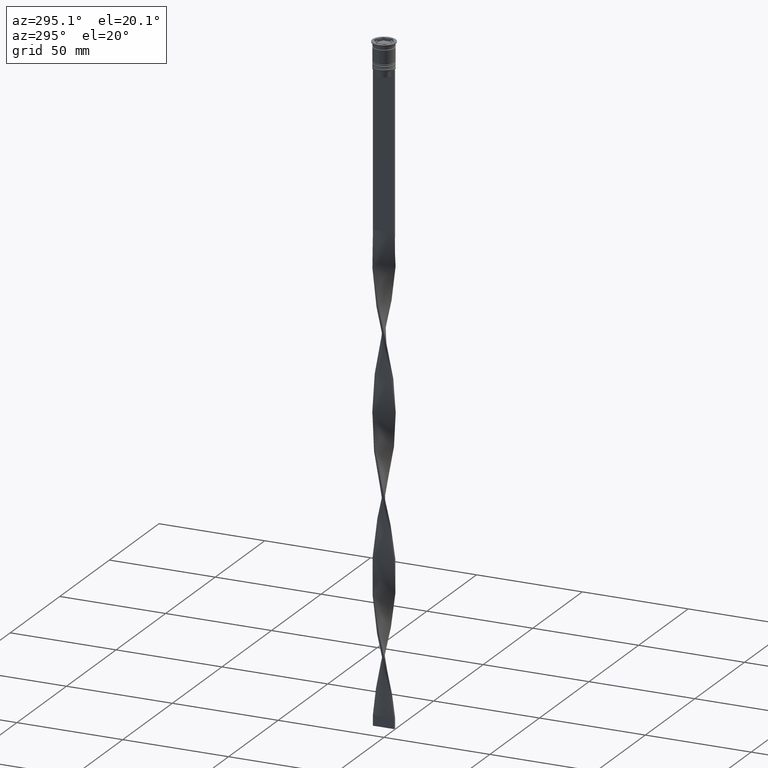
[diagram: clean part render]
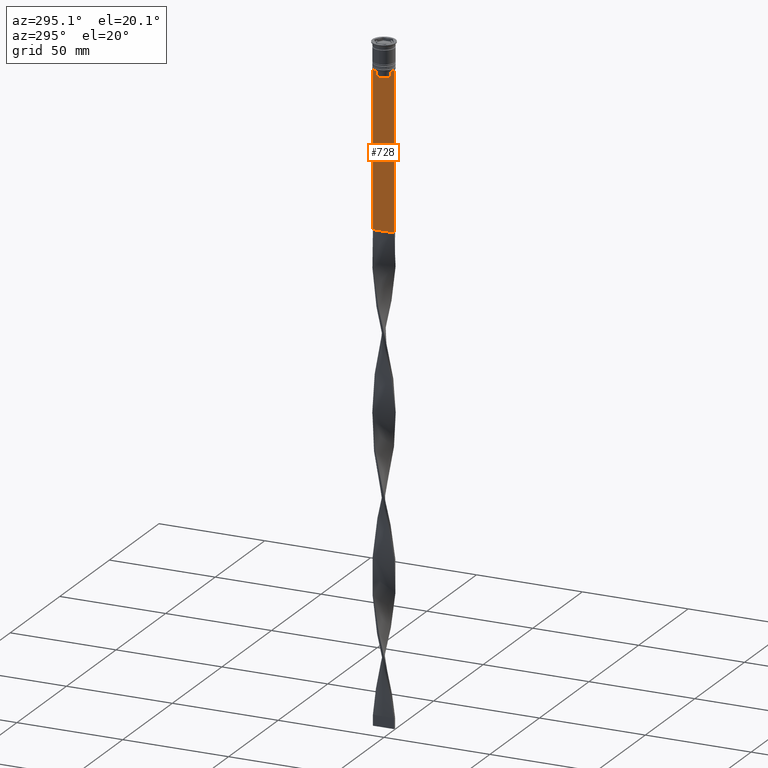
[diagram: same view with one face highlighted and labeled with its STEP entity id]
A machine part, auxiliary view. The second image highlights one B-rep face of the part: STEP entity #728.
In plain terms, the highlighted planar face has unit normal (-1, 0, 0).
Its self-contained STEP definition (entity closure, byte-faithful):
#10 = CARTESIAN_POINT ( 'NONE',  ( -0.5000000000000000000, -3.363034344160045208, 0.000000000000000000 ) ) ;
#63 = LINE ( 'NONE', #2919, #3769 ) ;
#65 = FACE_OUTER_BOUND ( 'NONE', #2010, .T. ) ;
#272 = CARTESIAN_POINT ( 'NONE',  ( -0.5000000000000000000, -4.999999999999999112, -86.50000000000000000 ) ) ;
#305 = B_SPLINE_CURVE_WITH_KNOTS ( 'NONE', 3,
 ( #3834, #693, #402, #2924 ),
 .UNSPECIFIED., .F., .F.,
 ( 4, 4 ),
 ( 0.006644825462451552783, 0.007355321358912435097 ),
 .UNSPECIFIED. ) ;
#311 = VERTEX_POINT ( 'NONE', #3650 ) ;
#319 = LINE ( 'NONE', #272, #4099 ) ;
#364 = CARTESIAN_POINT ( 'NONE',  ( -0.5000000000000000000, -4.999999999999999112, -12.50000000000000000 ) ) ;
#380 = PLANE ( 'NONE',  #1089 ) ;
#389 = LINE ( 'NONE', #3529, #2642 ) ;
#396 = EDGE_CURVE ( 'NONE', #4062, #1197, #2688, .T. ) ;
#402 = CARTESIAN_POINT ( 'NONE',  ( -0.5000000000000000000, 3.531412678228260216, -12.83345231756357840 ) ) ;
#419 = EDGE_CURVE ( 'NONE', #311, #697, #2342, .T. ) ;
#428 = ORIENTED_EDGE ( 'NONE', *, *, #419, .F. ) ;
#429 = CARTESIAN_POINT ( 'NONE',  ( -0.5000000000000000000, 3.363034344160045208, -13.00000000000000178 ) ) ;
#487 = VECTOR ( 'NONE', #2979, 1000.000000000000000 ) ;
#556 = VECTOR ( 'NONE', #2997, 1000.000000000000000 ) ;
#573 = ORIENTED_EDGE ( 'NONE', *, *, #2214, .F. ) ;
#590 = EDGE_CURVE ( 'NONE', #697, #2698, #2881, .T. ) ;
#616 = CARTESIAN_POINT ( 'NONE',  ( -0.5000000000000000000, 5.000000000000000888, -2.450124378879110054 ) ) ;
#638 = VERTEX_POINT ( 'NONE', #2901 ) ;
#693 = CARTESIAN_POINT ( 'NONE',  ( -0.5000000000000000000, 3.699657965831574913, -12.66677026074361301 ) ) ;
#697 = VERTEX_POINT ( 'NONE', #2245 ) ;
#711 = CARTESIAN_POINT ( 'NONE',  ( -0.5000000000000000000, -4.999999999999999112, -12.50000000000000000 ) ) ;
#728 = ADVANCED_FACE ( 'NONE', ( #65 ), #380, .T. ) ;
#872 = ORIENTED_EDGE ( 'NONE', *, *, #3188, .F. ) ;
#939 = CARTESIAN_POINT ( 'NONE',  ( -0.5000000000000000000, -4.874423042781575788, -12.50000000000000000 ) ) ;
#984 = EDGE_CURVE ( 'NONE', #638, #3865, #2375, .T. ) ;
#1057 = CARTESIAN_POINT ( 'NONE',  ( -0.5000000000000000000, -3.531412985305424801, -12.83345201382502765 ) ) ;
#1089 = AXIS2_PLACEMENT_3D ( 'NONE', #1377, #2666, #3554 ) ;
#1152 = EDGE_CURVE ( 'NONE', #2698, #3752, #1662, .T. ) ;
#1181 = ORIENTED_EDGE ( 'NONE', *, *, #396, .F. ) ;
#1197 = VERTEX_POINT ( 'NONE', #364 ) ;
#1242 = VERTEX_POINT ( 'NONE', #429 ) ;
#1261 = DIRECTION ( 'NONE',  ( 0.000000000000000000, 0.000000000000000000, -1.000000000000000000 ) ) ;
#1362 = CARTESIAN_POINT ( 'NONE',  ( -0.5000000000000000000, -3.363034344160045208, -13.00000000000000178 ) ) ;
#1369 = LINE ( 'NONE', #2656, #3038 ) ;
#1377 = CARTESIAN_POINT ( 'NONE',  ( -0.5000000000000000000, -4.999999999999999112, -2.450124378879110054 ) ) ;
#1379 = CARTESIAN_POINT ( 'NONE',  ( -0.5000000000000000000, 3.399999999999998135, -15.50000000000000000 ) ) ;
#1422 = VECTOR ( 'NONE', #1261, 1000.000000000000000 ) ;
#1455 = ORIENTED_EDGE ( 'NONE', *, *, #3384, .F. ) ;
#1513 = VERTEX_POINT ( 'NONE', #2221 ) ;
#1595 = DIRECTION ( 'NONE',  ( 0.000000000000000000, 1.000000000000000000, 0.000000000000000000 ) ) ;
#1662 = B_SPLINE_CURVE_WITH_KNOTS ( 'NONE', 3,
 ( #1362, #1057, #2328, #3601 ),
 .UNSPECIFIED., .F., .F.,
 ( 4, 4 ),
 ( 0.01632394437298965648, 0.01703543518243618576 ),
 .UNSPECIFIED. ) ;
#1694 = LINE ( 'NONE', #711, #3908 ) ;
#1755 = CARTESIAN_POINT ( 'NONE',  ( -0.5000000000000000000, 5.000000000000000888, -86.50000000000000000 ) ) ;
#1772 = CARTESIAN_POINT ( 'NONE',  ( -0.5000000000000000000, -3.867815921162742754, -12.50000000000000000 ) ) ;
#1795 = ORIENTED_EDGE ( 'NONE', *, *, #4051, .F. ) ;
#1810 = EDGE_CURVE ( 'NONE', #3141, #3865, #319, .T. ) ;
#1833 = VECTOR ( 'NONE', #2921, 1000.000000000000000 ) ;
#1841 = DIRECTION ( 'NONE',  ( 0.000000000000000000, 0.000000000000000000, -1.000000000000000000 ) ) ;
#1961 = CARTESIAN_POINT ( 'NONE',  ( -0.5000000000000000000, 3.867815921162742754, -12.50000000000000000 ) ) ;
#2010 = EDGE_LOOP ( 'NONE', ( #2922, #1455, #1795, #2418, #2043, #872, #1181, #573, #3423, #2100, #428, #3645 ) ) ;
#2036 = VECTOR ( 'NONE', #1841, 1000.000000000000000 ) ;
#2043 = ORIENTED_EDGE ( 'NONE', *, *, #1810, .F. ) ;
#2100 = ORIENTED_EDGE ( 'NONE', *, *, #590, .F. ) ;
#2214 = EDGE_CURVE ( 'NONE', #3752, #4062, #1694, .T. ) ;
#2221 = CARTESIAN_POINT ( 'NONE',  ( -0.5000000000000000000, 4.874423042781575788, -12.50000000000000000 ) ) ;
#2245 = CARTESIAN_POINT ( 'NONE',  ( -0.5000000000000000000, -3.363034344160045652, -15.50000000000000000 ) ) ;
#2328 = CARTESIAN_POINT ( 'NONE',  ( -0.5000000000000000000, -3.699658232838647365, -12.66676999593996555 ) ) ;
#2342 = LINE ( 'NONE', #1379, #556 ) ;
#2375 = LINE ( 'NONE', #616, #1422 ) ;
#2418 = ORIENTED_EDGE ( 'NONE', *, *, #984, .T. ) ;
#2442 = CARTESIAN_POINT ( 'NONE',  ( -0.5000000000000000000, -4.999999999999999112, -86.50000000000000000 ) ) ;
#2483 = LINE ( 'NONE', #3751, #2036 ) ;
#2536 = VERTEX_POINT ( 'NONE', #1961 ) ;
#2612 = DIRECTION ( 'NONE',  ( 0.000000000000000000, -1.000000000000000000, 0.000000000000000000 ) ) ;
#2618 = DIRECTION ( 'NONE',  ( 0.000000000000000000, -1.000000000000000000, 0.000000000000000000 ) ) ;
#2628 = EDGE_CURVE ( 'NONE', #2536, #1242, #305, .T. ) ;
#2642 = VECTOR ( 'NONE', #2612, 1000.000000000000000 ) ;
#2656 = CARTESIAN_POINT ( 'NONE',  ( -0.5000000000000000000, 3.363034344160045208, 0.000000000000000000 ) ) ;
#2666 = DIRECTION ( 'NONE',  ( -1.000000000000000000, 0.000000000000000000, 0.000000000000000000 ) ) ;
#2688 = LINE ( 'NONE', #3264, #487 ) ;
#2698 = VERTEX_POINT ( 'NONE', #4055 ) ;
#2881 = LINE ( 'NONE', #10, #1833 ) ;
#2901 = CARTESIAN_POINT ( 'NONE',  ( -0.5000000000000000000, 5.000000000000000888, -12.50000000000000000 ) ) ;
#2910 = DIRECTION ( 'NONE',  ( 0.000000000000000000, 0.000000000000000000, -1.000000000000000000 ) ) ;
#2919 = CARTESIAN_POINT ( 'NONE',  ( -0.5000000000000000000, -4.999999999999999112, -12.50000000000000000 ) ) ;
#2921 = DIRECTION ( 'NONE',  ( -0.000000000000000000, -0.000000000000000000, 1.000000000000000000 ) ) ;
#2922 = ORIENTED_EDGE ( 'NONE', *, *, #2628, .F. ) ;
#2924 = CARTESIAN_POINT ( 'NONE',  ( -0.5000000000000000000, 3.363034344160045208, -13.00000000000000178 ) ) ;
#2979 = DIRECTION ( 'NONE',  ( 0.000000000000000000, -1.000000000000000000, 0.000000000000000000 ) ) ;
#2995 = DIRECTION ( 'NONE',  ( 0.000000000000000000, -1.000000000000000000, 0.000000000000000000 ) ) ;
#2997 = DIRECTION ( 'NONE',  ( 0.000000000000000000, -1.000000000000000000, 0.000000000000000000 ) ) ;
#3038 = VECTOR ( 'NONE', #2910, 1000.000000000000000 ) ;
#3141 = VERTEX_POINT ( 'NONE', #2442 ) ;
#3188 = EDGE_CURVE ( 'NONE', #1197, #3141, #2483, .T. ) ;
#3264 = CARTESIAN_POINT ( 'NONE',  ( -0.5000000000000000000, -4.999999999999999112, -12.50000000000000000 ) ) ;
#3384 = EDGE_CURVE ( 'NONE', #1513, #2536, #389, .T. ) ;
#3423 = ORIENTED_EDGE ( 'NONE', *, *, #1152, .F. ) ;
#3529 = CARTESIAN_POINT ( 'NONE',  ( -0.5000000000000000000, -4.999999999999999112, -12.50000000000000000 ) ) ;
#3554 = DIRECTION ( 'NONE',  ( 0.000000000000000000, 0.000000000000000000, 1.000000000000000000 ) ) ;
#3564 = EDGE_CURVE ( 'NONE', #1242, #311, #1369, .T. ) ;
#3601 = CARTESIAN_POINT ( 'NONE',  ( -0.5000000000000000000, -3.867815921162742754, -12.50000000000000000 ) ) ;
#3645 = ORIENTED_EDGE ( 'NONE', *, *, #3564, .F. ) ;
#3650 = CARTESIAN_POINT ( 'NONE',  ( -0.5000000000000000000, 3.363034344160045652, -15.50000000000000000 ) ) ;
#3751 = CARTESIAN_POINT ( 'NONE',  ( -0.5000000000000000000, -4.999999999999999112, -2.450124378879110054 ) ) ;
#3752 = VERTEX_POINT ( 'NONE', #1772 ) ;
#3769 = VECTOR ( 'NONE', #2618, 1000.000000000000000 ) ;
#3834 = CARTESIAN_POINT ( 'NONE',  ( -0.5000000000000000000, 3.867815921162742754, -12.50000000000000000 ) ) ;
#3865 = VERTEX_POINT ( 'NONE', #1755 ) ;
#3908 = VECTOR ( 'NONE', #2995, 1000.000000000000000 ) ;
#4051 = EDGE_CURVE ( 'NONE', #638, #1513, #63, .T. ) ;
#4055 = CARTESIAN_POINT ( 'NONE',  ( -0.5000000000000000000, -3.363034344160045208, -13.00000000000000178 ) ) ;
#4062 = VERTEX_POINT ( 'NONE', #939 ) ;
#4099 = VECTOR ( 'NONE', #1595, 1000.000000000000000 ) ;